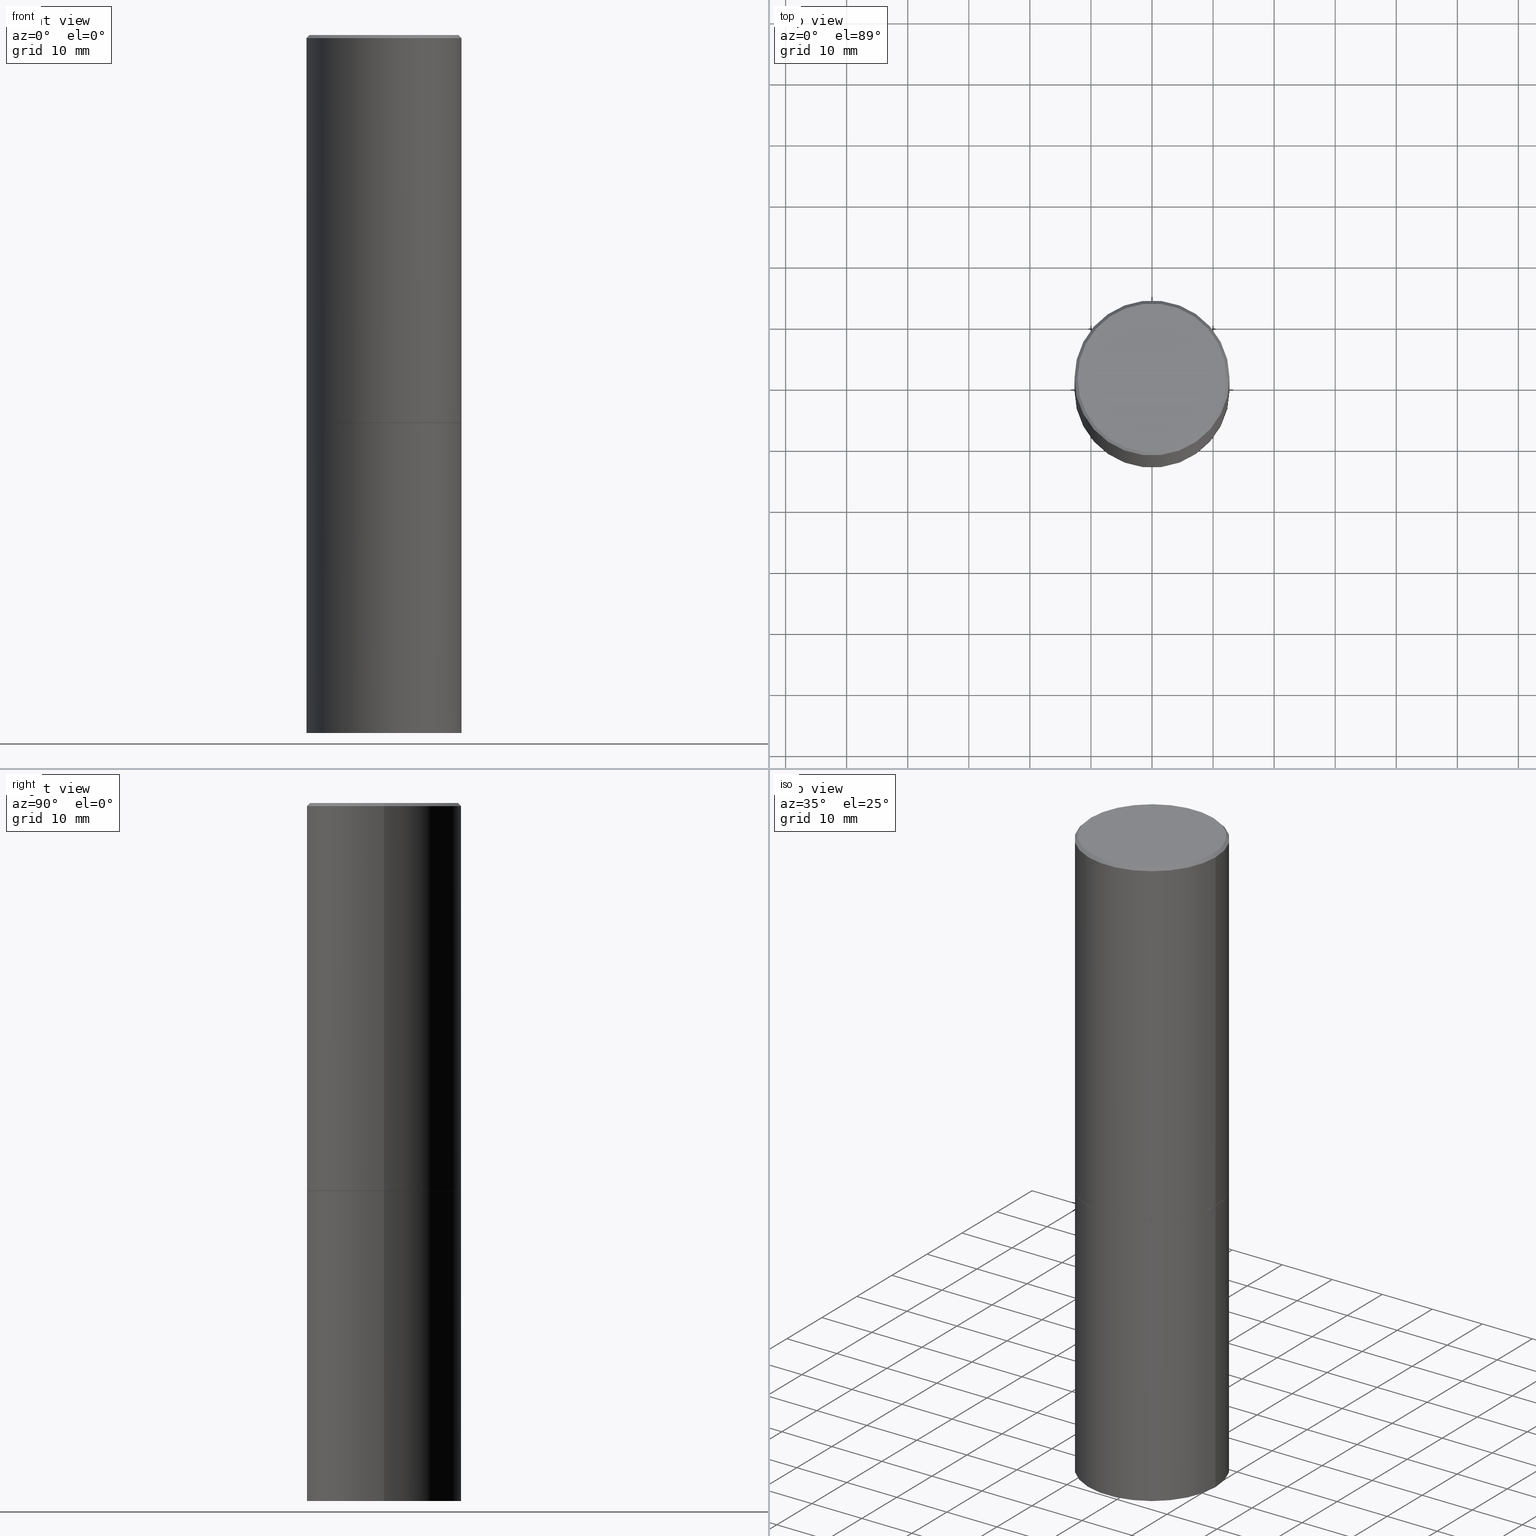
[diagram: canonical four-view strip — front | top / right | iso, engineering-drawing reading convention]
A machine part, canonical four-view strip (front | top / right | iso — engineering-drawing reading convention). The complete STEP part file that produces these views, byte-faithful:
ISO-10303-21;
HEADER;
FILE_DESCRIPTION (( 'STEP AP203' ),
    '1' );
FILE_NAME ('38524.STEP',
    '2024-02-27T23:29:49',
    ( '' ),
    ( '' ),
    'SwSTEP 2.0',
    'SolidWorks 2023',
    '' );
FILE_SCHEMA (( 'CONFIG_CONTROL_DESIGN' ));
ENDSEC;

DATA;
#1 = DIRECTION ( 'NONE',  ( 0.7071067811866199593, -2.468850131083015945E-15, 0.7071067811864750752 ) ) ;
#2 =( GEOMETRIC_REPRESENTATION_CONTEXT ( 3 ) GLOBAL_UNCERTAINTY_ASSIGNED_CONTEXT ( ( #146 ) ) GLOBAL_UNIT_ASSIGNED_CONTEXT ( ( #93, #343, #241 ) ) REPRESENTATION_CONTEXT ( 'NONE', 'WORKASPACE' ) );
#3 = LOCAL_TIME ( 18, 29, 49.00000000000000000, #181 ) ;
#4 = ADVANCED_FACE ( 'NONE', ( #216 ), #160, .T. ) ;
#5 = APPROVAL ( #123, 'UNSPECIFIED' ) ;
#6 = CARTESIAN_POINT ( 'NONE',  ( 0.4989999999999999991, -1.221320172327331228E-14, -2.500000000000000000 ) ) ;
#7 = PERSON_AND_ORGANIZATION_ROLE ( 'design_supplier' ) ;
#8 = CARTESIAN_POINT ( 'NONE',  ( 6.113672015462842613E-29, -8.728703347107864943E-15, -2.500000000000000000 ) ) ;
#9 = SECURITY_CLASSIFICATION_LEVEL ( 'unclassified' ) ;
#10 = DATE_AND_TIME ( #267, #106 ) ;
#11 = AXIS2_PLACEMENT_3D ( 'NONE', #174, #140, #363 ) ;
#12 = APPROVAL_DATE_TIME ( #245, #246 ) ;
#13 = DIRECTION ( 'NONE',  ( 2.445468806185136597E-29, -3.491481338843145583E-15, -1.000000000000000000 ) ) ;
#14 = AXIS2_PLACEMENT_3D ( 'NONE', #8, #296, #43 ) ;
#15 = EDGE_CURVE ( 'NONE', #124, #344, #64, .T. ) ;
#16 = CARTESIAN_POINT ( 'NONE',  ( 4.890937612370296805E-31, -6.982962677686323656E-17, -0.02000000000000009409 ) ) ;
#17 = DIRECTION ( 'NONE',  ( -2.445468806185136597E-29, 3.491481338843145583E-15, 1.000000000000000000 ) ) ;
#18 = CARTESIAN_POINT ( 'NONE',  ( -0.5000000000000000000, -8.667471007150509990E-15, -4.500000000000000000 ) ) ;
#19 = CARTESIAN_POINT ( 'NONE',  ( -0.5000000000000000000, -8.448070674724393209E-16, -2.499000000000000110 ) ) ;
#20 = DIRECTION ( 'NONE',  ( 1.000000000000000000, -6.982962677686266711E-15, 0.000000000000000000 ) ) ;
#21 = DIRECTION ( 'NONE',  ( -2.445468806185136877E-29, 3.491481338843145188E-15, 1.000000000000000000 ) ) ;
#22 = FACE_OUTER_BOUND ( 'NONE', #85, .T. ) ;
#23 = FACE_OUTER_BOUND ( 'NONE', #207, .T. ) ;
#24 = ORIENTED_EDGE ( 'NONE', *, *, #71, .F. ) ;
#25 = FACE_OUTER_BOUND ( 'NONE', #60, .T. ) ;
#26 = ORIENTED_EDGE ( 'NONE', *, *, #62, .T. ) ;
#27 = CARTESIAN_POINT ( 'NONE',  ( -0.4989999999999999991, -5.177796641316743408E-15, -2.500000000000000000 ) ) ;
#28 = EDGE_CURVE ( 'NONE', #319, #366, #135, .T. ) ;
#29 = CARTESIAN_POINT ( 'NONE',  ( 6.113672015462842613E-29, -8.728703347107864943E-15, -2.500000000000000000 ) ) ;
#30 = CIRCLE ( 'NONE', #248, 0.5000000000000000000 ) ;
#31 = EDGE_LOOP ( 'NONE', ( #339, #236 ) ) ;
#32 = PRODUCT_DEFINITION_SHAPE ( 'NONE', 'NONE',  #266 ) ;
#33 = EDGE_LOOP ( 'NONE', ( #24, #262, #280, #203 ) ) ;
#34 = CIRCLE ( 'NONE', #217, 0.5000000000000000000 ) ;
#35 = DATE_TIME_ROLE ( 'classification_date' ) ;
#36 = CARTESIAN_POINT ( 'NONE',  ( 0.000000000000000000, 0.000000000000000000, 0.000000000000000000 ) ) ;
#37 = DIRECTION ( 'NONE',  ( -2.445468806185136597E-29, 3.491481338843145583E-15, 1.000000000000000000 ) ) ;
#38 = APPROVAL_DATE_TIME ( #247, #5 ) ;
#39 = APPROVAL_STATUS ( 'not_yet_approved' ) ;
#40 = ORIENTED_EDGE ( 'NONE', *, *, #192, .F. ) ;
#41 = AXIS2_PLACEMENT_3D ( 'NONE', #36, #17, #205 ) ;
#42 = DATE_AND_TIME ( #72, #171 ) ;
#43 = DIRECTION ( 'NONE',  ( 1.000000000000000000, -6.982962677686266711E-15, 0.000000000000000000 ) ) ;
#44 = DIRECTION ( 'NONE',  ( -0.7071067811866199593, 7.493145998870616062E-15, 0.7071067811864750752 ) ) ;
#45 = EDGE_CURVE ( 'NONE', #172, #314, #263, .T. ) ;
#46 = CC_DESIGN_PERSON_AND_ORGANIZATION_ASSIGNMENT ( #120, #289, ( #301 ) ) ;
#47 = DIRECTION ( 'NONE',  ( 1.000000000000000000, -6.982962677686266711E-15, 4.876036955247133888E-29 ) ) ;
#48 = CIRCLE ( 'NONE', #87, 0.5000000000000000000 ) ;
#49 = CC_DESIGN_DATE_AND_TIME_ASSIGNMENT ( #128, #35, ( #112 ) ) ;
#50 = DIRECTION ( 'NONE',  ( 1.000000000000000000, -6.982962677686266711E-15, 0.000000000000000000 ) ) ;
#51 = LINE ( 'NONE', #252, #80 ) ;
#52 = LINE ( 'NONE', #226, #288 ) ;
#53 = CIRCLE ( 'NONE', #284, 0.5000000000000000000 ) ;
#54 = CARTESIAN_POINT ( 'NONE',  ( 0.000000000000000000, 0.000000000000000000, 0.000000000000000000 ) ) ;
#55 = ORIENTED_EDGE ( 'NONE', *, *, #167, .F. ) ;
#56 = ADVANCED_FACE ( 'NONE', ( #182 ), #100, .T. ) ;
#57 = CARTESIAN_POINT ( 'NONE',  ( 0.4999999999999997780, -3.491481338843131778E-15, 2.438088387897966775E-29 ) ) ;
#58 = DIRECTION ( 'NONE',  ( -2.445468806185136877E-29, 3.491481338843145188E-15, 1.000000000000000000 ) ) ;
#59 = AXIS2_PLACEMENT_3D ( 'NONE', #189, #13, #139 ) ;
#60 = EDGE_LOOP ( 'NONE', ( #323, #110, #113, #115 ) ) ;
#61 = APPLICATION_PROTOCOL_DEFINITION ( 'international standard', 'config_control_design', 1994, #79 ) ;
#62 = EDGE_CURVE ( 'NONE', #344, #126, #185, .T. ) ;
#63 = EDGE_LOOP ( 'NONE', ( #119, #209, #26, #257 ) ) ;
#64 = LINE ( 'NONE', #73, #103 ) ;
#65 = CARTESIAN_POINT ( 'NONE',  ( 3.491481338843243007E-15, 0.4999999999999842903, -4.500000000000001776 ) ) ;
#66 = CIRCLE ( 'NONE', #239, 0.4999999999999996114 ) ;
#67 = DIRECTION ( 'NONE',  ( 2.438088387897960049E-29, -3.491481338843145188E-15, -1.000000000000000000 ) ) ;
#68 = MANIFOLD_SOLID_BREP ( 'Body-Move/Copy2[2]', #365 ) ;
#69 = DIRECTION ( 'NONE',  ( 1.000000000000000000, -6.982962677686269077E-15, 0.000000000000000000 ) ) ;
#70 = DIRECTION ( 'NONE',  ( 0.000000000000000000, 0.000000000000000000, 1.000000000000000000 ) ) ;
#71 = EDGE_CURVE ( 'NONE', #148, #314, #165, .T. ) ;
#72 = CALENDAR_DATE ( 2024, 27, 2 ) ;
#73 = CARTESIAN_POINT ( 'NONE',  ( 0.4999999999999996114, -3.500078625662626318E-15, -0.02000000000000009409 ) ) ;
#74 = CIRCLE ( 'NONE', #141, 0.4799999999999995381 ) ;
#75 = CONICAL_SURFACE ( 'NONE', #325, 0.4999999999999996114, 0.7853981633974471688 ) ;
#76 = APPROVAL_PERSON_ORGANIZATION ( #274, #5, #133 ) ;
#77 = CARTESIAN_POINT ( 'NONE',  ( 0.5000000000000000000, -1.221669320461215371E-14, -2.499000000000000110 ) ) ;
#78 = DIRECTION ( 'NONE',  ( 1.000000000000000000, -6.982962677686266711E-15, 0.000000000000000000 ) ) ;
#79 = APPLICATION_CONTEXT ( 'configuration controlled 3d designs of mechanical parts and assemblies' ) ;
#80 = VECTOR ( 'NONE', #170, 39.37007874015748143 ) ;
#81 = FACE_OUTER_BOUND ( 'NONE', #307, .T. ) ;
#82 = CARTESIAN_POINT ( 'NONE',  ( -0.4799999999999995381, 3.386736898677836041E-15, 1.280553747027767124E-17 ) ) ;
#83 = CARTESIAN_POINT ( 'NONE',  ( 6.113672015462842613E-29, -8.728703347107864943E-15, -2.500000000000000000 ) ) ;
#84 = DIRECTION ( 'NONE',  ( 1.000000000000000000, -6.982962677686266711E-15, 4.876176775795935793E-29 ) ) ;
#85 = EDGE_LOOP ( 'NONE', ( #151, #200, #310, #317 ) ) ;
#86 = FACE_OUTER_BOUND ( 'NONE', #63, .T. ) ;
#87 = AXIS2_PLACEMENT_3D ( 'NONE', #291, #156, #265 ) ;
#88 = EDGE_CURVE ( 'NONE', #126, #344, #66, .T. ) ;
#89 = VERTEX_POINT ( 'NONE', #77 ) ;
#90 = DIRECTION ( 'NONE',  ( 1.000000000000000000, -6.982962677686265922E-15, 4.876176775795935793E-29 ) ) ;
#91 = ORIENTED_EDGE ( 'NONE', *, *, #15, .F. ) ;
#92 = ADVANCED_BREP_SHAPE_REPRESENTATION ( '38524', ( #187, #68, #353 ), #2 ) ;
#93 =( CONVERSION_BASED_UNIT ( 'INCH', #231 ) LENGTH_UNIT ( ) NAMED_UNIT ( #324 ) );
#94 = DIRECTION ( 'NONE',  ( 1.000000000000000000, -6.982962677686266711E-15, 0.000000000000000000 ) ) ;
#95 = ORIENTED_EDGE ( 'NONE', *, *, #331, .T. ) ;
#96 = EDGE_CURVE ( 'NONE', #270, #126, #52, .T. ) ;
#97 = PRODUCT ( '38524', '38524', '', ( #218 ) ) ;
#98 = ADVANCED_FACE ( 'NONE', ( #81 ), #272, .T. ) ;
#99 = ORIENTED_EDGE ( 'NONE', *, *, #142, .T. ) ;
#100 = CONICAL_SURFACE ( 'NONE', #208, 0.4989999999999999991, 0.7853981633975507526 ) ;
#101 = PERSON_AND_ORGANIZATION ( #121, #326 ) ;
#102 = ORIENTED_EDGE ( 'NONE', *, *, #109, .T. ) ;
#103 = VECTOR ( 'NONE', #240, 39.37007874015748143 ) ;
#104 = DIRECTION ( 'NONE',  ( -2.445468806185136597E-29, 3.491481338843145583E-15, 1.000000000000000000 ) ) ;
#105 = DIRECTION ( 'NONE',  ( -2.445468806185136597E-29, 3.491481338843145583E-15, 1.000000000000000000 ) ) ;
#106 = LOCAL_TIME ( 18, 29, 49.00000000000000000, #293 ) ;
#107 = DIRECTION ( 'NONE',  ( -2.445468806185136597E-29, 3.491481338843145583E-15, 1.000000000000000000 ) ) ;
#108 = CARTESIAN_POINT ( 'NONE',  ( 3.351822085289404392E-15, 0.4799999999999995381, -1.669508273909557670E-15 ) ) ;
#109 = EDGE_CURVE ( 'NONE', #366, #287, #251, .T. ) ;
#110 = ORIENTED_EDGE ( 'NONE', *, *, #71, .T. ) ;
#111 = CARTESIAN_POINT ( 'NONE',  ( 0.5000000000000000000, -1.920314736363729025E-14, -4.500000000000000000 ) ) ;
#112 = SECURITY_CLASSIFICATION ( '', '', #9 ) ;
#113 = ORIENTED_EDGE ( 'NONE', *, *, #45, .F. ) ;
#114 = ADVANCED_FACE ( 'NONE', ( #138 ), #297, .T. ) ;
#115 = ORIENTED_EDGE ( 'NONE', *, *, #286, .F. ) ;
#116 = ORIENTED_EDGE ( 'NONE', *, *, #45, .T. ) ;
#117 = AXIS2_PLACEMENT_3D ( 'NONE', #83, #104, #50 ) ;
#118 = ORIENTED_EDGE ( 'NONE', *, *, #155, .T. ) ;
#119 = ORIENTED_EDGE ( 'NONE', *, *, #331, .F. ) ;
#120 = PERSON_AND_ORGANIZATION ( #121, #326 ) ;
#121 = PERSON ( 'UNSPECIFIED', 'UNSPECIFIED', 'UNSPECIFIED', ('UNSPECIFIED'), ('UNSPECIFIED'), ('UNSPECIFIED') ) ;
#122 = EDGE_CURVE ( 'NONE', #366, #319, #258, .T. ) ;
#123 = APPROVAL_STATUS ( 'not_yet_approved' ) ;
#124 = VERTEX_POINT ( 'NONE', #193 ) ;
#125 = PERSON_AND_ORGANIZATION ( #121, #326 ) ;
#126 = VERTEX_POINT ( 'NONE', #134 ) ;
#127 = AXIS2_PLACEMENT_3D ( 'NONE', #54, #191, #84 ) ;
#128 = DATE_AND_TIME ( #349, #3 ) ;
#129 = PERSON_AND_ORGANIZATION ( #121, #326 ) ;
#130 = DATE_TIME_ROLE ( 'creation_date' ) ;
#131 = DIRECTION ( 'NONE',  ( 1.000000000000000000, 0.000000000000000000, 0.000000000000000000 ) ) ;
#132 = PERSON_AND_ORGANIZATION_ROLE ( 'classification_officer' ) ;
#133 = APPROVAL_ROLE ( '' ) ;
#134 = CARTESIAN_POINT ( 'NONE',  ( -0.4999999999999996114, 3.421651712066267296E-15, -0.02000000000000009409 ) ) ;
#135 = CIRCLE ( 'NONE', #14, 0.4989999999999999991 ) ;
#136 = DIRECTION ( 'NONE',  ( -2.445468806185136597E-29, 3.491481338843145583E-15, 1.000000000000000000 ) ) ;
#137 = EDGE_CURVE ( 'NONE', #261, #148, #53, .T. ) ;
#138 = FACE_OUTER_BOUND ( 'NONE', #173, .T. ) ;
#139 = DIRECTION ( 'NONE',  ( -1.000000000000000000, 6.982962677686266711E-15, 0.000000000000000000 ) ) ;
#140 = DIRECTION ( 'NONE',  ( -2.445468806185136597E-29, 3.491481338843145583E-15, 1.000000000000000000 ) ) ;
#141 = AXIS2_PLACEMENT_3D ( 'NONE', #256, #201, #311 ) ;
#142 = EDGE_CURVE ( 'NONE', #270, #124, #352, .T. ) ;
#143 = CARTESIAN_POINT ( 'NONE',  ( 0.4999999999999996114, -3.500078625662626318E-15, -0.02000000000000009409 ) ) ;
#144 = ORIENTED_EDGE ( 'NONE', *, *, #28, .F. ) ;
#145 = LINE ( 'NONE', #357, #328 ) ;
#146 = UNCERTAINTY_MEASURE_WITH_UNIT (LENGTH_MEASURE( 1.000000000000000082E-05 ), #93, 'distance_accuracy_value', 'NONE');
#147 = PERSON_AND_ORGANIZATION ( #121, #326 ) ;
#148 = VERTEX_POINT ( 'NONE', #18 ) ;
#149 = AXIS2_PLACEMENT_3D ( 'NONE', #318, #67, #154 ) ;
#150 = CALENDAR_DATE ( 2024, 27, 2 ) ;
#151 = ORIENTED_EDGE ( 'NONE', *, *, #220, .T. ) ;
#152 = ORIENTED_EDGE ( 'NONE', *, *, #88, .T. ) ;
#153 = VECTOR ( 'NONE', #44, 39.37007874015748143 ) ;
#154 = DIRECTION ( 'NONE',  ( -1.000000000000000000, 6.982962677686265922E-15, -4.876176775795935793E-29 ) ) ;
#155 = EDGE_CURVE ( 'NONE', #314, #172, #34, .T. ) ;
#156 = DIRECTION ( 'NONE',  ( -2.445468806185136597E-29, 3.491481338843145583E-15, 1.000000000000000000 ) ) ;
#157 = DIRECTION ( 'NONE',  ( -1.000000000000000000, 6.982962677686265922E-15, -4.876176775795935793E-29 ) ) ;
#158 = PERSON_AND_ORGANIZATION_ROLE ( 'creator' ) ;
#159 = AXIS2_PLACEMENT_3D ( 'NONE', #29, #341, #94 ) ;
#160 = PLANE ( 'NONE',  #175 ) ;
#161 = CARTESIAN_POINT ( 'NONE',  ( 0.000000000000000000, 0.000000000000000000, 0.000000000000000000 ) ) ;
#162 = CARTESIAN_POINT ( 'NONE',  ( -3.131554243005659264E-46, 4.471029511141341874E-32, 1.280553747030123384E-17 ) ) ;
#163 = CIRCLE ( 'NONE', #334, 0.5000000000000000000 ) ;
#164 = ADVANCED_FACE ( 'NONE', ( #260 ), #253, .T. ) ;
#165 = LINE ( 'NONE', #168, #305 ) ;
#166 = PLANE ( 'NONE',  #223 ) ;
#167 = EDGE_CURVE ( 'NONE', #287, #89, #163, .T. ) ;
#168 = CARTESIAN_POINT ( 'NONE',  ( -0.5000000000000000000, 3.552713678800500929E-15, -2.459467545127452891E-29 ) ) ;
#169 = VECTOR ( 'NONE', #58, 39.37007874015748143 ) ;
#170 = DIRECTION ( 'NONE',  ( -2.445468806185136877E-29, 3.491481338843145188E-15, 1.000000000000000000 ) ) ;
#171 = LOCAL_TIME ( 18, 29, 49.00000000000000000, #268 ) ;
#172 = VERTEX_POINT ( 'NONE', #279 ) ;
#173 = EDGE_LOOP ( 'NONE', ( #345, #282, #362, #312 ) ) ;
#174 = CARTESIAN_POINT ( 'NONE',  ( 0.000000000000000000, 0.000000000000000000, 0.000000000000000000 ) ) ;
#175 = AXIS2_PLACEMENT_3D ( 'NONE', #65, #350, #157 ) ;
#176 = EDGE_LOOP ( 'NONE', ( #232, #342, #292, #55 ) ) ;
#177 = ORIENTED_EDGE ( 'NONE', *, *, #220, .F. ) ;
#178 = CC_DESIGN_PERSON_AND_ORGANIZATION_ASSIGNMENT ( #125, #213, ( #97 ) ) ;
#179 = ADVANCED_FACE ( 'NONE', ( #23 ), #199, .F. ) ;
#180 = CLOSED_SHELL ( 'NONE', ( #295, #4, #179, #304 ) ) ;
#181 = COORDINATED_UNIVERSAL_TIME_OFFSET ( 5, 0, .BEHIND. ) ;
#182 = FACE_OUTER_BOUND ( 'NONE', #176, .T. ) ;
#183 = PERSON_AND_ORGANIZATION ( #121, #326 ) ;
#184 = CARTESIAN_POINT ( 'NONE',  ( 0.000000000000000000, 0.000000000000000000, 0.000000000000000000 ) ) ;
#185 = CIRCLE ( 'NONE', #196, 0.4999999999999996114 ) ;
#186 = SHAPE_DEFINITION_REPRESENTATION ( #32, #92 ) ;
#187 = MANIFOLD_SOLID_BREP ( 'Body-Move/Copy2[1]', #180 ) ;
#188 = DIRECTION ( 'NONE',  ( -2.445468806185136597E-29, 3.491481338843145583E-15, 1.000000000000000000 ) ) ;
#189 = CARTESIAN_POINT ( 'NONE',  ( 4.890937612370296805E-31, -6.982962677686323656E-17, -0.02000000000000009409 ) ) ;
#190 = DIRECTION ( 'NONE',  ( -0.7071067811865466846, 2.468850131082247989E-15, -0.7071067811865483499 ) ) ;
#191 = DIRECTION ( 'NONE',  ( -2.445468806185136597E-29, 3.491481338843145583E-15, 1.000000000000000000 ) ) ;
#192 = EDGE_CURVE ( 'NONE', #319, #89, #322, .T. ) ;
#193 = CARTESIAN_POINT ( 'NONE',  ( 0.4799999999999995381, -3.396558832296479338E-15, 1.280553747032483033E-17 ) ) ;
#194 = CARTESIAN_POINT ( 'NONE',  ( 0.4989999999999999991, -1.221320172327331228E-14, -2.500000000000000000 ) ) ;
#195 = ORIENTED_EDGE ( 'NONE', *, *, #122, .F. ) ;
#196 = AXIS2_PLACEMENT_3D ( 'NONE', #16, #136, #273 ) ;
#197 = CARTESIAN_POINT ( 'NONE',  ( 4.890937612370296805E-31, -6.982962677686323656E-17, -0.02000000000000009409 ) ) ;
#198 = LOCAL_TIME ( 18, 29, 49.00000000000000000, #202 ) ;
#199 = PLANE ( 'NONE',  #149 ) ;
#200 = ORIENTED_EDGE ( 'NONE', *, *, #327, .T. ) ;
#201 = DIRECTION ( 'NONE',  ( -2.445468806185136597E-29, 3.491481338843145583E-15, 1.000000000000000000 ) ) ;
#202 = COORDINATED_UNIVERSAL_TIME_OFFSET ( 5, 0, .BEHIND. ) ;
#203 = ORIENTED_EDGE ( 'NONE', *, *, #155, .F. ) ;
#204 = CC_DESIGN_PERSON_AND_ORGANIZATION_ASSIGNMENT ( #183, #158, ( #266 ) ) ;
#205 = DIRECTION ( 'NONE',  ( 1.000000000000000000, -6.982962677686266711E-15, 4.876176775795935793E-29 ) ) ;
#206 = CARTESIAN_POINT ( 'NONE',  ( 6.111226546656657010E-29, -8.725211865769021935E-15, -2.499000000000000110 ) ) ;
#207 = EDGE_LOOP ( 'NONE', ( #116, #118 ) ) ;
#208 = AXIS2_PLACEMENT_3D ( 'NONE', #290, #107, #78 ) ;
#209 = ORIENTED_EDGE ( 'NONE', *, *, #15, .T. ) ;
#210 = DESIGN_CONTEXT ( 'detailed design', #333, 'design' ) ;
#211 = ORIENTED_EDGE ( 'NONE', *, *, #28, .T. ) ;
#212 = AXIS2_PLACEMENT_3D ( 'NONE', #162, #300, #47 ) ;
#213 = PERSON_AND_ORGANIZATION_ROLE ( 'design_owner' ) ;
#214 = DIRECTION ( 'NONE',  ( 1.000000000000000000, -6.982962677686265133E-15, 0.000000000000000000 ) ) ;
#215 = APPROVAL_ROLE ( '' ) ;
#216 = FACE_OUTER_BOUND ( 'NONE', #31, .T. ) ;
#217 = AXIS2_PLACEMENT_3D ( 'NONE', #356, #105, #222 ) ;
#218 = MECHANICAL_CONTEXT ( 'NONE', #79, 'mechanical' ) ;
#219 = CC_DESIGN_APPROVAL ( #351, ( #112 ) ) ;
#220 = EDGE_CURVE ( 'NONE', #89, #287, #30, .T. ) ;
#221 = CC_DESIGN_PERSON_AND_ORGANIZATION_ASSIGNMENT ( #129, #132, ( #112 ) ) ;
#222 = DIRECTION ( 'NONE',  ( 1.000000000000000000, -6.982962677686269077E-15, 0.000000000000000000 ) ) ;
#223 = AXIS2_PLACEMENT_3D ( 'NONE', #108, #225, #227 ) ;
#224 = PRODUCT_RELATED_PRODUCT_CATEGORY ( 'detail', '', ( #97 ) ) ;
#225 = DIRECTION ( 'NONE',  ( 2.438088387897960049E-29, -3.491481338843145188E-15, -1.000000000000000000 ) ) ;
#226 = CARTESIAN_POINT ( 'NONE',  ( -0.4999999999999996114, 3.421651712066267296E-15, -0.02000000000000009409 ) ) ;
#227 = DIRECTION ( 'NONE',  ( -1.000000000000000000, 6.982962677686265922E-15, -4.876176775795935793E-29 ) ) ;
#228 = ORIENTED_EDGE ( 'NONE', *, *, #142, .F. ) ;
#229 = VECTOR ( 'NONE', #1, 39.37007874015748143 ) ;
#230 = APPROVAL_PERSON_ORGANIZATION ( #101, #351, #215 ) ;
#231 = LENGTH_MEASURE_WITH_UNIT ( LENGTH_MEASURE( 0.02539999999999999897 ), #329 );
#232 = ORIENTED_EDGE ( 'NONE', *, *, #109, .F. ) ;
#233 = DIRECTION ( 'NONE',  ( 1.000000000000000000, -6.982962677686265133E-15, 0.000000000000000000 ) ) ;
#234 = EDGE_LOOP ( 'NONE', ( #144, #195 ) ) ;
#235 = EDGE_CURVE ( 'NONE', #148, #261, #48, .T. ) ;
#236 = ORIENTED_EDGE ( 'NONE', *, *, #235, .F. ) ;
#237 = CARTESIAN_POINT ( 'NONE',  ( 6.111226546656657010E-29, -8.725211865769021935E-15, -2.499000000000000110 ) ) ;
#238 = CARTESIAN_POINT ( 'NONE',  ( 6.113672015462842613E-29, -8.728703347107864943E-15, -2.500000000000000000 ) ) ;
#239 = AXIS2_PLACEMENT_3D ( 'NONE', #250, #243, #355 ) ;
#240 = DIRECTION ( 'NONE',  ( 0.7071067811865466846, -7.319954787623252890E-15, -0.7071067811865483499 ) ) ;
#241 =( NAMED_UNIT ( * ) SI_UNIT ( $, .STERADIAN. ) SOLID_ANGLE_UNIT ( ) );
#242 = APPROVAL_DATE_TIME ( #42, #351 ) ;
#243 = DIRECTION ( 'NONE',  ( -2.445468806185136597E-29, 3.491481338843145583E-15, 1.000000000000000000 ) ) ;
#244 = ADVANCED_FACE ( 'NONE', ( #22 ), #309, .T. ) ;
#245 = DATE_AND_TIME ( #150, #198 ) ;
#246 = APPROVAL ( #364, 'UNSPECIFIED' ) ;
#247 = DATE_AND_TIME ( #347, #358 ) ;
#248 = AXIS2_PLACEMENT_3D ( 'NONE', #237, #37, #214 ) ;
#249 = CC_DESIGN_APPROVAL ( #246, ( #301 ) ) ;
#250 = CARTESIAN_POINT ( 'NONE',  ( 4.890937612370296805E-31, -6.982962677686323656E-17, -0.02000000000000009409 ) ) ;
#251 = LINE ( 'NONE', #302, #153 ) ;
#252 = CARTESIAN_POINT ( 'NONE',  ( 0.5000000000000000000, -3.491481338843133355E-15, 2.438088387897967896E-29 ) ) ;
#253 = CONICAL_SURFACE ( 'NONE', #159, 0.4989999999999999991, 0.7853981633975507526 ) ;
#254 = CARTESIAN_POINT ( 'NONE',  ( -0.5000000000000000000, -8.667471007150509990E-15, -2.500000000000000000 ) ) ;
#255 = ORIENTED_EDGE ( 'NONE', *, *, #96, .T. ) ;
#256 = CARTESIAN_POINT ( 'NONE',  ( -3.131554243005659264E-46, 4.471029511141341874E-32, 1.280553747030123384E-17 ) ) ;
#257 = ORIENTED_EDGE ( 'NONE', *, *, #96, .F. ) ;
#258 = CIRCLE ( 'NONE', #117, 0.4989999999999999991 ) ;
#259 = EDGE_LOOP ( 'NONE', ( #211, #102, #177, #40 ) ) ;
#260 = FACE_OUTER_BOUND ( 'NONE', #259, .T. ) ;
#261 = VERTEX_POINT ( 'NONE', #111 ) ;
#262 = ORIENTED_EDGE ( 'NONE', *, *, #235, .T. ) ;
#263 = CIRCLE ( 'NONE', #315, 0.5000000000000000000 ) ;
#264 = PERSON_AND_ORGANIZATION ( #121, #326 ) ;
#265 = DIRECTION ( 'NONE',  ( 1.000000000000000000, -6.982962677686266711E-15, 0.000000000000000000 ) ) ;
#266 = PRODUCT_DEFINITION ( 'UNKNOWN', '', #301, #210 ) ;
#267 = CALENDAR_DATE ( 2024, 27, 2 ) ;
#268 = COORDINATED_UNIVERSAL_TIME_OFFSET ( 5, 0, .BEHIND. ) ;
#269 = COORDINATED_UNIVERSAL_TIME_OFFSET ( 5, 0, .BEHIND. ) ;
#270 = VERTEX_POINT ( 'NONE', #82 ) ;
#271 = DIRECTION ( 'NONE',  ( -2.445468806185136877E-29, 3.491481338843145188E-15, 1.000000000000000000 ) ) ;
#272 = CONICAL_SURFACE ( 'NONE', #59, 0.4999999999999996114, 0.7853981633974471688 ) ;
#273 = DIRECTION ( 'NONE',  ( 1.000000000000000000, -6.982962677686266711E-15, 0.000000000000000000 ) ) ;
#274 = PERSON_AND_ORGANIZATION ( #121, #326 ) ;
#275 = CYLINDRICAL_SURFACE ( 'NONE', #11, 0.5000000000000000000 ) ;
#276 = DIRECTION ( 'NONE',  ( -2.445468806185136597E-29, 3.491481338843145583E-15, 1.000000000000000000 ) ) ;
#277 = CC_DESIGN_APPROVAL ( #5, ( #266 ) ) ;
#278 = FACE_OUTER_BOUND ( 'NONE', #234, .T. ) ;
#279 = CARTESIAN_POINT ( 'NONE',  ( 0.5000000000000000000, -1.222018468595099830E-14, -2.500000000000000000 ) ) ;
#280 = ORIENTED_EDGE ( 'NONE', *, *, #286, .T. ) ;
#281 = CC_DESIGN_PERSON_AND_ORGANIZATION_ASSIGNMENT ( #264, #7, ( #301 ) ) ;
#282 = ORIENTED_EDGE ( 'NONE', *, *, #167, .T. ) ;
#283 = DIRECTION ( 'NONE',  ( 2.445468806185136597E-29, -3.491481338843145583E-15, -1.000000000000000000 ) ) ;
#284 = AXIS2_PLACEMENT_3D ( 'NONE', #298, #276, #20 ) ;
#285 = CARTESIAN_POINT ( 'NONE',  ( 6.113672015462842613E-29, -8.728703347107864943E-15, -2.500000000000000000 ) ) ;
#286 = EDGE_CURVE ( 'NONE', #261, #172, #51, .T. ) ;
#287 = VERTEX_POINT ( 'NONE', #19 ) ;
#288 = VECTOR ( 'NONE', #190, 39.37007874015748143 ) ;
#289 = PERSON_AND_ORGANIZATION_ROLE ( 'creator' ) ;
#290 = CARTESIAN_POINT ( 'NONE',  ( 6.113672015462842613E-29, -8.728703347107864943E-15, -2.500000000000000000 ) ) ;
#291 = CARTESIAN_POINT ( 'NONE',  ( 1.100460962783311469E-28, -1.571166602479415690E-14, -4.500000000000000000 ) ) ;
#292 = ORIENTED_EDGE ( 'NONE', *, *, #192, .T. ) ;
#293 = COORDINATED_UNIVERSAL_TIME_OFFSET ( 5, 0, .BEHIND. ) ;
#294 = AXIS2_PLACEMENT_3D ( 'NONE', #285, #337, #90 ) ;
#295 = ADVANCED_FACE ( 'NONE', ( #25 ), #360, .T. ) ;
#296 = DIRECTION ( 'NONE',  ( -2.445468806185136597E-29, 3.491481338843145583E-15, 1.000000000000000000 ) ) ;
#297 = CYLINDRICAL_SURFACE ( 'NONE', #299, 0.4999999999999997780 ) ;
#298 = CARTESIAN_POINT ( 'NONE',  ( 1.100460962783311469E-28, -1.571166602479415690E-14, -4.500000000000000000 ) ) ;
#299 = AXIS2_PLACEMENT_3D ( 'NONE', #161, #188, #330 ) ;
#300 = DIRECTION ( 'NONE',  ( -2.445468806185136597E-29, 3.491481338843145583E-15, 1.000000000000000000 ) ) ;
#301 = PRODUCT_DEFINITION_FORMATION_WITH_SPECIFIED_SOURCE ( 'ANY', '', #97, .NOT_KNOWN. ) ;
#302 = CARTESIAN_POINT ( 'NONE',  ( -0.4989999999999999991, -5.183095095664965021E-15, -2.500000000000000000 ) ) ;
#303 = FACE_OUTER_BOUND ( 'NONE', #33, .T. ) ;
#304 = ADVANCED_FACE ( 'NONE', ( #303 ), #275, .T. ) ;
#305 = VECTOR ( 'NONE', #271, 39.37007874015748143 ) ;
#306 = CC_DESIGN_DATE_AND_TIME_ASSIGNMENT ( #10, #130, ( #266 ) ) ;
#307 = EDGE_LOOP ( 'NONE', ( #91, #228, #255, #152 ) ) ;
#308 = DIRECTION ( 'NONE',  ( -1.000000000000000000, 6.982962677686266711E-15, 0.000000000000000000 ) ) ;
#309 = CYLINDRICAL_SURFACE ( 'NONE', #41, 0.4999999999999997780 ) ;
#310 = ORIENTED_EDGE ( 'NONE', *, *, #62, .F. ) ;
#311 = DIRECTION ( 'NONE',  ( 1.000000000000000000, -6.982962677686266711E-15, 4.876036955247133888E-29 ) ) ;
#312 = ORIENTED_EDGE ( 'NONE', *, *, #88, .F. ) ;
#313 = DIRECTION ( 'NONE',  ( -2.445468806185136597E-29, 3.491481338843145583E-15, 1.000000000000000000 ) ) ;
#314 = VERTEX_POINT ( 'NONE', #254 ) ;
#315 = AXIS2_PLACEMENT_3D ( 'NONE', #238, #348, #69 ) ;
#316 = APPROVAL_PERSON_ORGANIZATION ( #147, #246, #338 ) ;
#317 = ORIENTED_EDGE ( 'NONE', *, *, #346, .F. ) ;
#318 = CARTESIAN_POINT ( 'NONE',  ( 3.491481338843194098E-15, 0.4999999999999912292, -2.500000000000001776 ) ) ;
#319 = VERTEX_POINT ( 'NONE', #194 ) ;
#320 = APPLICATION_PROTOCOL_DEFINITION ( 'international standard', 'config_control_design', 1994, #333 ) ;
#321 = ADVANCED_FACE ( 'NONE', ( #278 ), #361, .F. ) ;
#322 = LINE ( 'NONE', #6, #229 ) ;
#323 = ORIENTED_EDGE ( 'NONE', *, *, #137, .T. ) ;
#324 = DIMENSIONAL_EXPONENTS ( 1.000000000000000000, 0.000000000000000000, 0.000000000000000000, 0.000000000000000000, 0.000000000000000000, 0.000000000000000000, 0.000000000000000000 ) ;
#325 = AXIS2_PLACEMENT_3D ( 'NONE', #197, #283, #308 ) ;
#326 = ORGANIZATION ( 'UNSPECIFIED', 'UNSPECIFIED', '' ) ;
#327 = EDGE_CURVE ( 'NONE', #287, #126, #145, .T. ) ;
#328 = VECTOR ( 'NONE', #21, 39.37007874015748143 ) ;
#329 =( LENGTH_UNIT ( ) NAMED_UNIT ( * ) SI_UNIT ( $, .METRE. ) );
#330 = DIRECTION ( 'NONE',  ( 1.000000000000000000, -6.982962677686266711E-15, 4.876176775795935793E-29 ) ) ;
#331 = EDGE_CURVE ( 'NONE', #124, #270, #74, .T. ) ;
#332 = LINE ( 'NONE', #57, #169 ) ;
#333 = APPLICATION_CONTEXT ( 'configuration controlled 3d designs of mechanical parts and assemblies' ) ;
#334 = AXIS2_PLACEMENT_3D ( 'NONE', #206, #313, #233 ) ;
#335 = EDGE_LOOP ( 'NONE', ( #99, #95 ) ) ;
#336 = CC_DESIGN_SECURITY_CLASSIFICATION ( #112, ( #301 ) ) ;
#337 = DIRECTION ( 'NONE',  ( -2.438088387897960049E-29, 3.491481338843145188E-15, 1.000000000000000000 ) ) ;
#338 = APPROVAL_ROLE ( '' ) ;
#339 = ORIENTED_EDGE ( 'NONE', *, *, #137, .F. ) ;
#340 = FACE_OUTER_BOUND ( 'NONE', #335, .T. ) ;
#341 = DIRECTION ( 'NONE',  ( -2.445468806185136597E-29, 3.491481338843145583E-15, 1.000000000000000000 ) ) ;
#342 = ORIENTED_EDGE ( 'NONE', *, *, #122, .T. ) ;
#343 =( NAMED_UNIT ( * ) PLANE_ANGLE_UNIT ( ) SI_UNIT ( $, .RADIAN. ) );
#344 = VERTEX_POINT ( 'NONE', #143 ) ;
#345 = ORIENTED_EDGE ( 'NONE', *, *, #327, .F. ) ;
#346 = EDGE_CURVE ( 'NONE', #89, #344, #332, .T. ) ;
#347 = CALENDAR_DATE ( 2024, 27, 2 ) ;
#348 = DIRECTION ( 'NONE',  ( -2.445468806185136597E-29, 3.491481338843145583E-15, 1.000000000000000000 ) ) ;
#349 = CALENDAR_DATE ( 2024, 27, 2 ) ;
#350 = DIRECTION ( 'NONE',  ( 2.438088387897960049E-29, -3.491481338843145188E-15, -1.000000000000000000 ) ) ;
#351 = APPROVAL ( #39, 'UNSPECIFIED' ) ;
#352 = CIRCLE ( 'NONE', #212, 0.4799999999999995381 ) ;
#353 = AXIS2_PLACEMENT_3D ( 'NONE', #184, #70, #131 ) ;
#354 = ADVANCED_FACE ( 'NONE', ( #340 ), #166, .F. ) ;
#355 = DIRECTION ( 'NONE',  ( 1.000000000000000000, -6.982962677686266711E-15, 0.000000000000000000 ) ) ;
#356 = CARTESIAN_POINT ( 'NONE',  ( 6.113672015462842613E-29, -8.728703347107864943E-15, -2.500000000000000000 ) ) ;
#357 = CARTESIAN_POINT ( 'NONE',  ( -0.4999999999999997780, 3.552713678800499352E-15, -2.459467545127452050E-29 ) ) ;
#358 = LOCAL_TIME ( 18, 29, 49.00000000000000000, #269 ) ;
#359 = ADVANCED_FACE ( 'NONE', ( #86 ), #75, .T. ) ;
#360 = CYLINDRICAL_SURFACE ( 'NONE', #127, 0.5000000000000000000 ) ;
#361 = PLANE ( 'NONE',  #294 ) ;
#362 = ORIENTED_EDGE ( 'NONE', *, *, #346, .T. ) ;
#363 = DIRECTION ( 'NONE',  ( 1.000000000000000000, -6.982962677686266711E-15, 4.876176775795935793E-29 ) ) ;
#364 = APPROVAL_STATUS ( 'not_yet_approved' ) ;
#365 = CLOSED_SHELL ( 'NONE', ( #164, #244, #359, #98, #114, #56, #321, #354 ) ) ;
#366 = VERTEX_POINT ( 'NONE', #27 ) ;
ENDSEC;
END-ISO-10303-21;
